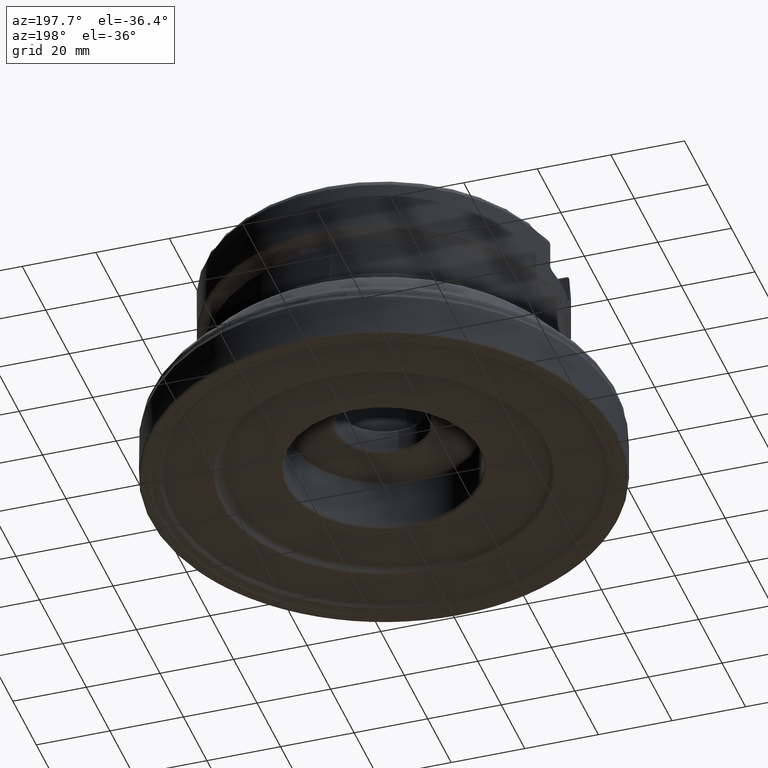
[diagram: clean part render]
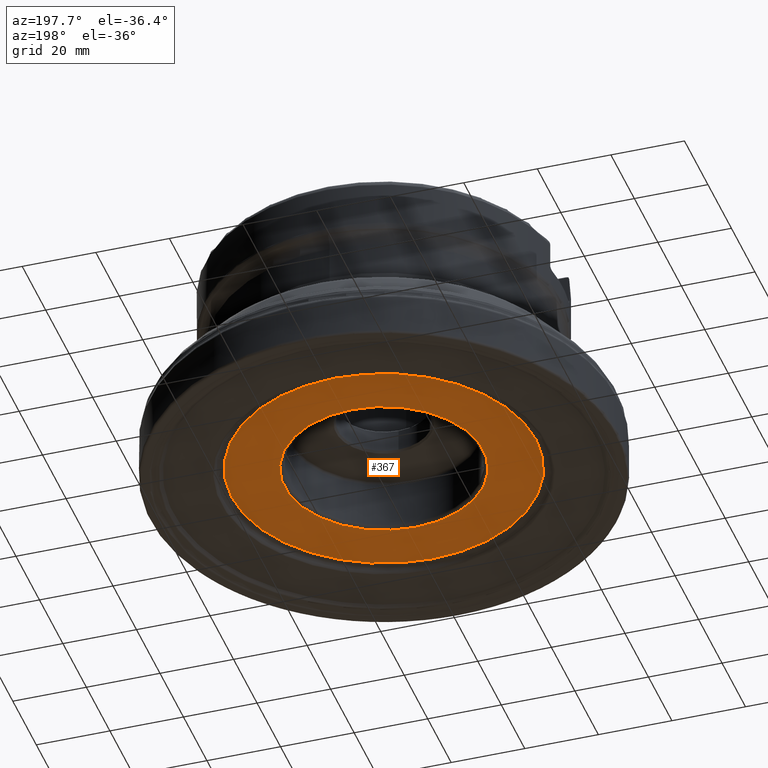
[diagram: same view with one face highlighted and labeled with its STEP entity id]
A machine part, auxiliary view. The second image highlights one B-rep face of the part: STEP entity #367.
In plain terms, the highlighted planar face has unit normal (0, -0, -1).
Its self-contained STEP definition (entity closure, byte-faithful):
#170=PLANE('',#1224);
#252=FACE_BOUND('',#485,.T.);
#253=FACE_BOUND('',#486,.T.);
#367=ADVANCED_FACE('',(#252,#253),#170,.T.);
#485=EDGE_LOOP('',(#646));
#486=EDGE_LOOP('',(#647));
#646=ORIENTED_EDGE('',*,*,#983,.T.);
#647=ORIENTED_EDGE('',*,*,#984,.T.);
#880=VERTEX_POINT('',#2067);
#881=VERTEX_POINT('',#2069);
#983=EDGE_CURVE('',#880,#880,#1084,.T.);
#984=EDGE_CURVE('',#881,#881,#1085,.T.);
#1084=CIRCLE('',#1222,27.);
#1085=CIRCLE('',#1223,41.3729852746981);
#1222=AXIS2_PLACEMENT_3D('',#2066,#1368,#1369);
#1223=AXIS2_PLACEMENT_3D('',#2068,#1370,#1371);
#1224=AXIS2_PLACEMENT_3D('',#2070,#1372,#1373);
#1368=DIRECTION('',(0.,1.17145536458252E-15,1.));
#1369=DIRECTION('',(0.,1.,-1.17254457172506E-15));
#1370=DIRECTION('',(0.,-1.17145536458252E-15,-1.));
#1371=DIRECTION('',(0.,1.,-1.17400900623565E-15));
#1372=DIRECTION('',(0.,-1.17145536458252E-15,-1.));
#1373=DIRECTION('',(0.,1.,-1.17137202715334E-15));
#2066=CARTESIAN_POINT('',(4.68582145833009E-15,3.51436609374757E-15,3.));
#2067=CARTESIAN_POINT('',(4.68582145833009E-15,27.,2.99999999999996));
#2068=CARTESIAN_POINT('',(0.,3.51436609374757E-15,3.));
#2069=CARTESIAN_POINT('',(0.,41.3729852746981,2.99999999999995));
#2070=CARTESIAN_POINT('',(0.,3.51436609374757E-15,3.));